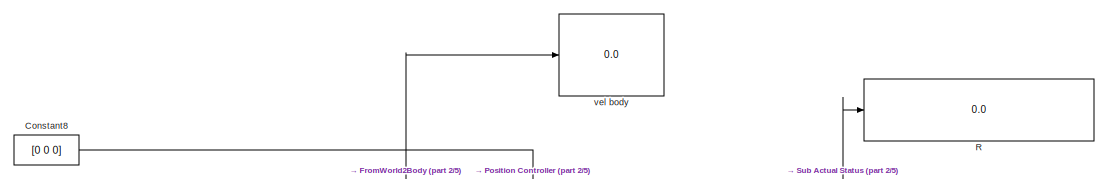
[diagram: root canvas - part 1/5, top center region]
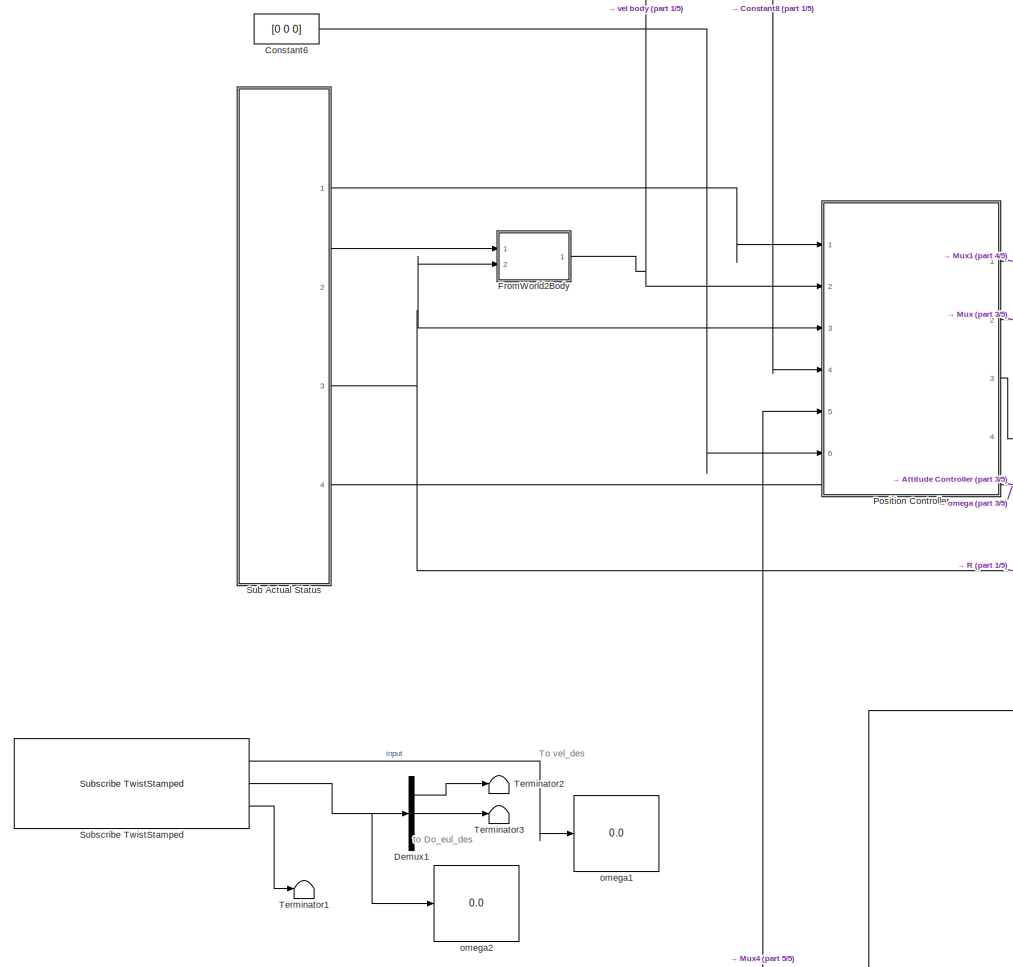
[diagram: root canvas - part 2/5, middle left region]
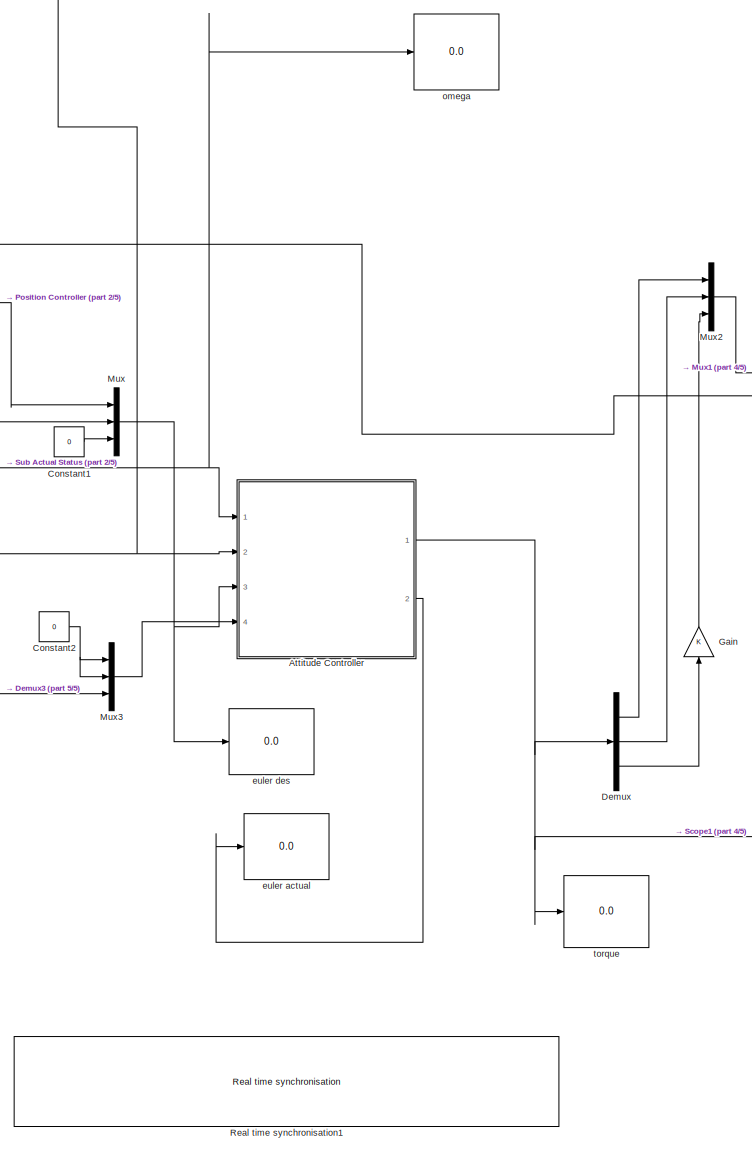
[diagram: root canvas - part 3/5, center side, full height]
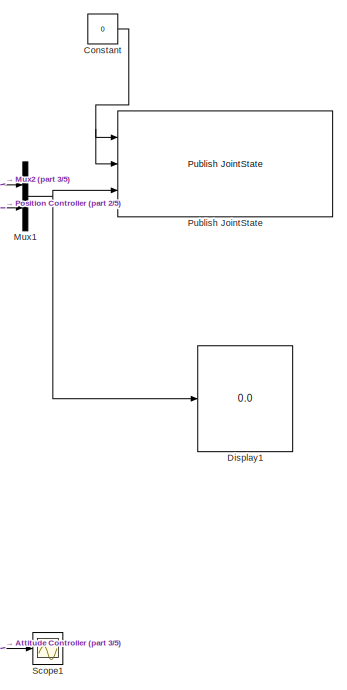
[diagram: root canvas - part 4/5, middle right region]
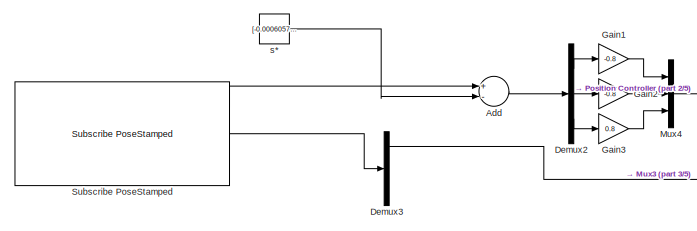
[diagram: root canvas - part 5/5, bottom left region]
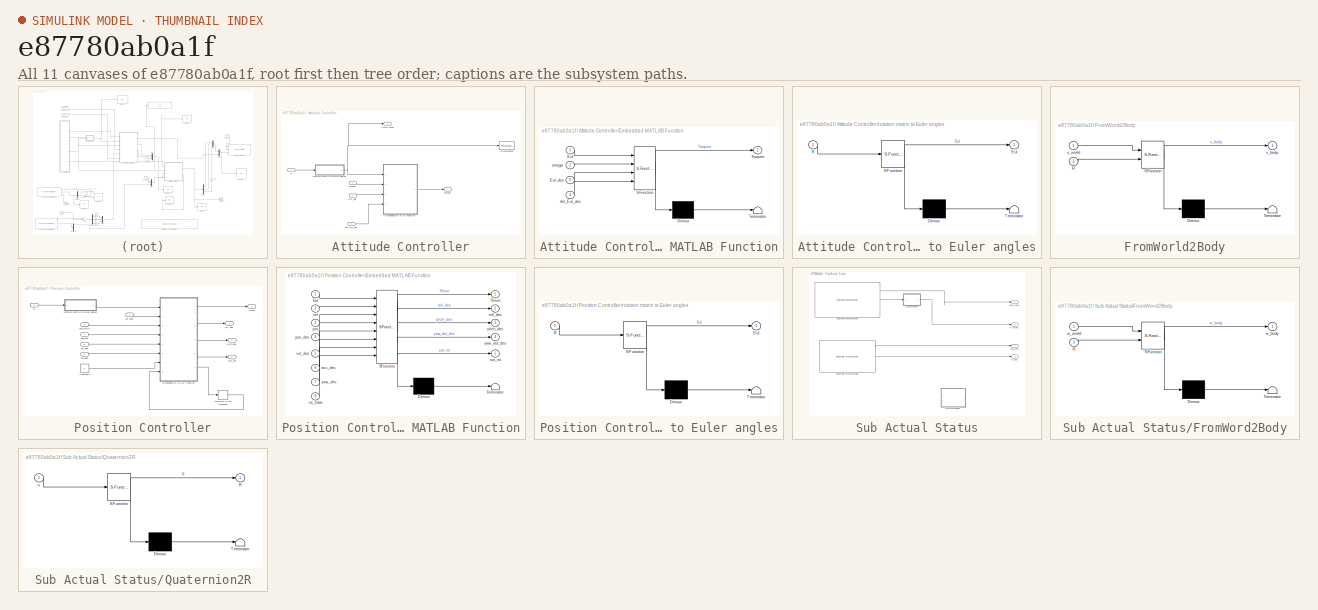
[diagram: thumbnail index - all 11 canvases of the model, root first then tree order]
MODEL slx_e87780ab0a1f
KIND model
BLOCK [Sum] Add
  InputSameDT = off
  Inputs = +-
  OutDataTypeStr = Inherit: Inherit via internal rule
  Ports = [2, 1]
  SaturateOnIntegerOverflow = off
BLOCK [SubSystem] Attitude Controller
  Ports = [4, 2]
  RequestExecContextInheritance = off
  SystemSampleTime = IMU_time_step
BLOCK [Outport] Attitude Controller/Actual euler
  IconDisplay = Port number
  Port = 2
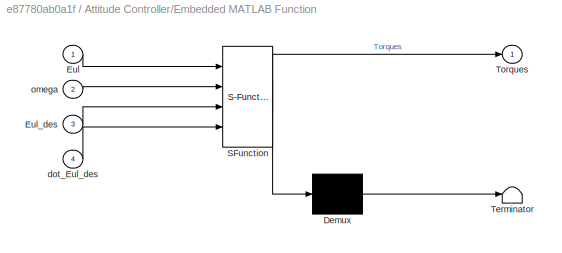
BLOCK [SubSystem] Attitude Controller/Embedded MATLAB Function
  ErrorFcn = Stateflow.Translate.translate
  PermitHierarchicalResolution = ExplicitOnly
  Ports = [4, 1]
  RequestExecContextInheritance = off
  SFBlockType = MATLAB Function
  TreatAsAtomicUnit = on
BLOCK [Demux] Attitude Controller/Embedded MATLAB Function/ Demux 
  Outputs = 1
  Ports = [1, 1]
BLOCK [S-Function] Attitude Controller/Embedded MATLAB Function/ SFunction 
  EnableBusSupport = off
  FunctionName = sf_sfun
  Parameters = KDP,KDR,KDY,KPP,KPR,KPY
  PortCounts = [4 2]
  Ports = [4, 2]
  Tag = Stateflow S-Function test_vel_ctrl 1
BLOCK [Terminator] Attitude Controller/Embedded MATLAB Function/ Terminator 
BLOCK [Inport] Attitude Controller/Embedded MATLAB Function/Eul
  IconDisplay = Port number
BLOCK [Inport] Attitude Controller/Embedded MATLAB Function/Eul_des
  IconDisplay = Port number
  Port = 3
BLOCK [Outport] Attitude Controller/Embedded MATLAB Function/Torques
  IconDisplay = Port number
BLOCK [Inport] Attitude Controller/Embedded MATLAB Function/dot_Eul_des
  IconDisplay = Port number
  Port = 4
BLOCK [Inport] Attitude Controller/Embedded MATLAB Function/omega
  IconDisplay = Port number
  Port = 2
BLOCK [Inport] Attitude Controller/Eul_des
  IconDisplay = Port number
  Port = 3
BLOCK [Inport] Attitude Controller/R
  IconDisplay = Port number
  Port = 2
BLOCK [ToWorkspace] Attitude Controller/To Workspace
  MaxDataPoints = inf
  Ports = [1]
  SampleTime = -1
  VariableName = Eul
BLOCK [Outport] Attitude Controller/Torques
  IconDisplay = Port number
BLOCK [Inport] Attitude Controller/dot_Eul_des
  IconDisplay = Port number
  Port = 4
BLOCK [Inport] Attitude Controller/omega
  IconDisplay = Port number
BLOCK [SubSystem] Attitude Controller/rotation matrix to Euler angles
  ErrorFcn = Stateflow.Translate.translate
  PermitHierarchicalResolution = ExplicitOnly
  Ports = [1, 1]
  RequestExecContextInheritance = off
  SFBlockType = MATLAB Function
  TreatAsAtomicUnit = on
BLOCK [Demux] Attitude Controller/rotation matrix to Euler angles/ Demux 
  Outputs = 1
  Ports = [1, 1]
BLOCK [S-Function] Attitude Controller/rotation matrix to Euler angles/ SFunction 
  EnableBusSupport = off
  FunctionName = sf_sfun
  PortCounts = [1 2]
  Ports = [1, 2]
  Tag = Stateflow S-Function test_vel_ctrl 26
BLOCK [Terminator] Attitude Controller/rotation matrix to Euler angles/ Terminator 
BLOCK [Outport] Attitude Controller/rotation matrix to Euler angles/Eul
  IconDisplay = Port number
BLOCK [Inport] Attitude Controller/rotation matrix to Euler angles/R
  IconDisplay = Port number
BLOCK [Constant] Constant
  Value = 0
BLOCK [Constant] Constant1
  Value = 0
BLOCK [Constant] Constant2
  Value = 0
BLOCK [Constant] Constant6
  Value = [0 0 0]
BLOCK [Constant] Constant8
  Value = [0 0 0]
BLOCK [Demux] Demux
  DisplayOption = bar
  Outputs = 3
  Ports = [1, 3]
BLOCK [Demux] Demux1
  DisplayOption = bar
  Outputs = 3
  Ports = [1, 3]
BLOCK [Demux] Demux2
  DisplayOption = bar
  Outputs = 3
  Ports = [1, 3]
BLOCK [Demux] Demux3
  DisplayOption = bar
  Ports = [1, 4]
BLOCK [Display] Display1
  Decimation = 1
  Ports = [1]
BLOCK [SubSystem] FromWorld2Body
  ErrorFcn = Stateflow.Translate.translate
  PermitHierarchicalResolution = ExplicitOnly
  Ports = [2, 1]
  RequestExecContextInheritance = off
  SFBlockType = MATLAB Function
  TreatAsAtomicUnit = on
BLOCK [Demux] FromWorld2Body/ Demux 
  Outputs = 1
  Ports = [1, 1]
BLOCK [S-Function] FromWorld2Body/ SFunction 
  EnableBusSupport = off
  FunctionName = sf_sfun
  PortCounts = [2 2]
  Ports = [2, 2]
  Tag = Stateflow S-Function test_vel_ctrl 6
BLOCK [Terminator] FromWorld2Body/ Terminator 
BLOCK [Inport] FromWorld2Body/R
  IconDisplay = Port number
  Port = 2
BLOCK [Outport] FromWorld2Body/v_body
  IconDisplay = Port number
BLOCK [Inport] FromWorld2Body/v_world
  IconDisplay = Port number
BLOCK [Gain] Gain
  OutDataTypeStr = Inherit: Inherit via internal rule
  ParamDataTypeStr = Inherit: Inherit via internal rule
  SaturateOnIntegerOverflow = off
BLOCK [Gain] Gain1
  Gain = -0.8
  OutDataTypeStr = Inherit: Inherit via internal rule
  ParamDataTypeStr = Inherit: Inherit via internal rule
  SaturateOnIntegerOverflow = off
BLOCK [Gain] Gain2
  Gain = -0.8
  OutDataTypeStr = Inherit: Inherit via internal rule
  ParamDataTypeStr = Inherit: Inherit via internal rule
  SaturateOnIntegerOverflow = off
BLOCK [Gain] Gain3
  Gain = 0.8
  OutDataTypeStr = Inherit: Inherit via internal rule
  ParamDataTypeStr = Inherit: Inherit via internal rule
  SaturateOnIntegerOverflow = off
BLOCK [Mux] Mux
  DisplayOption = bar
  Inputs = 3
  Ports = [3, 1]
BLOCK [Mux] Mux1
  DisplayOption = bar
  Inputs = 2
  Ports = [2, 1]
BLOCK [Mux] Mux2
  DisplayOption = bar
  Inputs = 3
  Ports = [3, 1]
BLOCK [Mux] Mux3
  DisplayOption = bar
  Inputs = 3
  Ports = [3, 1]
BLOCK [Mux] Mux4
  DisplayOption = bar
  Inputs = 3
  Ports = [3, 1]
BLOCK [SubSystem] Position Controller
  Ports = [6, 4]
  RequestExecContextInheritance = off
  SystemSampleTime = VICON_time_step
BLOCK [Constant] Position Controller/Constant3
  Value = 0
BLOCK [DiscreteIntegrator] Position Controller/Discrete-Time Integrator
  ICPrevOutput = DiscIntNeverNeededParam
  ICPrevScaledInput = DiscIntNeverNeededParam
  InitialCondition = [0 0 0]
  Ports = [1, 1]
  SampleTime = -1
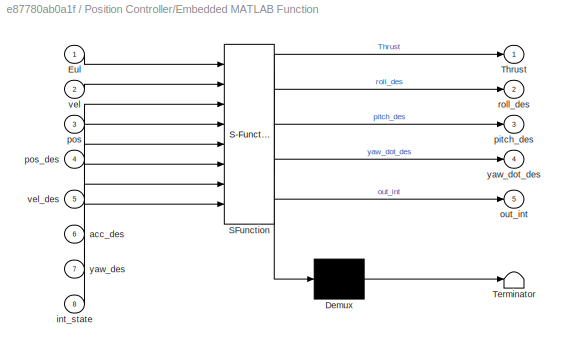
BLOCK [SubSystem] Position Controller/Embedded MATLAB Function
  ErrorFcn = Stateflow.Translate.translate
  PermitHierarchicalResolution = ExplicitOnly
  Ports = [8, 5]
  RequestExecContextInheritance = off
  SFBlockType = MATLAB Function
  TreatAsAtomicUnit = on
BLOCK [Demux] Position Controller/Embedded MATLAB Function/ Demux 
  Outputs = 1
  Ports = [1, 1]
BLOCK [S-Function] Position Controller/Embedded MATLAB Function/ SFunction 
  EnableBusSupport = off
  FunctionName = sf_sfun
  Parameters = g,kd,ki,kp,m0,max_pitch,max_roll
  PortCounts = [8 6]
  Ports = [8, 6]
  Tag = Stateflow S-Function test_vel_ctrl 3
BLOCK [Terminator] Position Controller/Embedded MATLAB Function/ Terminator 
BLOCK [Inport] Position Controller/Embedded MATLAB Function/Eul
  IconDisplay = Port number
BLOCK [Outport] Position Controller/Embedded MATLAB Function/Thrust
  IconDisplay = Port number
BLOCK [Inport] Position Controller/Embedded MATLAB Function/acc_des
  IconDisplay = Port number
  Port = 6
BLOCK [Inport] Position Controller/Embedded MATLAB Function/int_state
  IconDisplay = Port number
  Port = 8
BLOCK [Outport] Position Controller/Embedded MATLAB Function/out_int
  IconDisplay = Port number
  Port = 5
BLOCK [Outport] Position Controller/Embedded MATLAB Function/pitch_des
  IconDisplay = Port number
  Port = 3
BLOCK [Inport] Position Controller/Embedded MATLAB Function/pos
  IconDisplay = Port number
  Port = 3
BLOCK [Inport] Position Controller/Embedded MATLAB Function/pos_des
  IconDisplay = Port number
  Port = 4
BLOCK [Outport] Position Controller/Embedded MATLAB Function/roll_des
  IconDisplay = Port number
  Port = 2
BLOCK [Inport] Position Controller/Embedded MATLAB Function/vel
  IconDisplay = Port number
  Port = 2
BLOCK [Inport] Position Controller/Embedded MATLAB Function/vel_des
  IconDisplay = Port number
  Port = 5
BLOCK [Inport] Position Controller/Embedded MATLAB Function/yaw_des
  IconDisplay = Port number
  Port = 7
BLOCK [Outport] Position Controller/Embedded MATLAB Function/yaw_dot_des
  IconDisplay = Port number
  Port = 4
BLOCK [Inport] Position Controller/R
  IconDisplay = Port number
  Port = 3
BLOCK [Outport] Position Controller/Thrust
  IconDisplay = Port number
BLOCK [Inport] Position Controller/acc_des
  IconDisplay = Port number
  Port = 6
BLOCK [Outport] Position Controller/pitch_des
  IconDisplay = Port number
  Port = 3
BLOCK [Inport] Position Controller/pos_des
  IconDisplay = Port number
  Port = 4
BLOCK [Inport] Position Controller/pos_world
  IconDisplay = Port number
BLOCK [Outport] Position Controller/roll_des
  IconDisplay = Port number
  Port = 2
BLOCK [SubSystem] Position Controller/rotation matrix to Euler angles
  ErrorFcn = Stateflow.Translate.translate
  PermitHierarchicalResolution = ExplicitOnly
  Ports = [1, 1]
  RequestExecContextInheritance = off
  SFBlockType = MATLAB Function
  TreatAsAtomicUnit = on
BLOCK [Demux] Position Controller/rotation matrix to Euler angles/ Demux 
  Outputs = 1
  Ports = [1, 1]
BLOCK [S-Function] Position Controller/rotation matrix to Euler angles/ SFunction 
  EnableBusSupport = off
  FunctionName = sf_sfun
  PortCounts = [1 2]
  Ports = [1, 2]
  Tag = Stateflow S-Function test_vel_ctrl 4
BLOCK [Terminator] Position Controller/rotation matrix to Euler angles/ Terminator 
BLOCK [Outport] Position Controller/rotation matrix to Euler angles/Eul
  IconDisplay = Port number
BLOCK [Inport] Position Controller/rotation matrix to Euler angles/R
  IconDisplay = Port number
BLOCK [Inport] Position Controller/vel_body
  IconDisplay = Port number
  Port = 2
BLOCK [Inport] Position Controller/vel_des
  IconDisplay = Port number
  Port = 5
BLOCK [Outport] Position Controller/yaw_dot
  IconDisplay = Port number
  Port = 4
BLOCK [Reference] Publish JointState  REF=sensor_msgs/Publish JointState
  Ports = [3]
  SourceBlock = sensor_msgs/Publish JointState
  SourceType = Publisher JointState
  list_of_robot_ids = char([0])
  stepTime = basic_time_step
  topic_postfix = ''
  topic_prefix = '/command/quadrotor_'
BLOCK [Display] R
  Decimation = 1
  Ports = [1]
BLOCK [Reference] Real time synchronisation1  REF=rt_sync/Real time synchronisation
  Ports = [0, 1]
  ShowEveryNumCycles = 1/Tsim
  SourceBlock = rt_sync/Real time synchronisation
  minShownDelay = 0.5
  slowDownFactor = 1
  stepTime = Tsim
BLOCK [Scope] Scope1
  DataFormat = StructureWithTime
  Floating = off
  NumInputPorts = 1
  Ports = [1]
  SampleTime = 0
  SaveName = ScopeData1
  ShowLegends = off
BLOCK [SubSystem] Sub Actual Status
  Ports = [0, 4]
  RequestExecContextInheritance = off
BLOCK [SubSystem] Sub Actual Status/FromWord2Body
  Commented = on
  ErrorFcn = Stateflow.Translate.translate
  PermitHierarchicalResolution = ExplicitOnly
  Ports = [2, 1]
  RequestExecContextInheritance = off
  SFBlockType = MATLAB Function
  TreatAsAtomicUnit = on
BLOCK [Demux] Sub Actual Status/FromWord2Body/ Demux 
  Outputs = 1
  Ports = [1, 1]
BLOCK [S-Function] Sub Actual Status/FromWord2Body/ SFunction 
  EnableBusSupport = off
  FunctionName = sf_sfun
  PortCounts = [2 2]
  Ports = [2, 2]
  Tag = Stateflow S-Function test_vel_ctrl 5
BLOCK [Terminator] Sub Actual Status/FromWord2Body/ Terminator 
BLOCK [Inport] Sub Actual Status/FromWord2Body/R
  IconDisplay = Port number
  Port = 2
BLOCK [Outport] Sub Actual Status/FromWord2Body/w_body
  IconDisplay = Port number
BLOCK [Inport] Sub Actual Status/FromWord2Body/w_world
  IconDisplay = Port number
BLOCK [SubSystem] Sub Actual Status/Quaternion2R
  ErrorFcn = Stateflow.Translate.translate
  PermitHierarchicalResolution = ExplicitOnly
  Ports = [1, 1]
  RequestExecContextInheritance = off
  SFBlockType = MATLAB Function
  TreatAsAtomicUnit = on
BLOCK [Demux] Sub Actual Status/Quaternion2R/ Demux 
  Outputs = 1
  Ports = [1, 1]
BLOCK [S-Function] Sub Actual Status/Quaternion2R/ SFunction 
  EnableBusSupport = off
  FunctionName = sf_sfun
  PortCounts = [1 2]
  Ports = [1, 2]
  Tag = Stateflow S-Function test_vel_ctrl 2
BLOCK [Terminator] Sub Actual Status/Quaternion2R/ Terminator 
BLOCK [Outport] Sub Actual Status/Quaternion2R/R
  IconDisplay = Port number
BLOCK [Inport] Sub Actual Status/Quaternion2R/u
  IconDisplay = Port number
BLOCK [Outport] Sub Actual Status/R_world 
  IconDisplay = Port number
  Port = 3
BLOCK [Reference] Sub Actual Status/Subscribe PoseStamped  REF=ros_msgs/geometry_msgs/Subscribe PoseStamped
  Ports = [0, 3]
  SourceBlock = ros_msgs/geometry_msgs/Subscribe PoseStamped
  SourceType = Subscriber PoseStamped
  list_of_robot_ids = char([0])
  stepTime = basic_time_step
  topic_postfix = ''
  topic_prefix = '/vrep/pose/quadrotor_'
BLOCK [Reference] Sub Actual Status/Subscribe TwistStamped  REF=ros_msgs/geometry_msgs/Subscribe TwistStamped
  Ports = [0, 3]
  SourceBlock = ros_msgs/geometry_msgs/Subscribe TwistStamped
  SourceType = Subscriber TwistStamped
  list_of_robot_ids = char([0])
  stepTime = basic_time_step
  topic_postfix = ''
  topic_prefix = '/vrep/twist/quadrotor_'
BLOCK [Outport] Sub Actual Status/pos_world
  IconDisplay = Port number
BLOCK [Outport] Sub Actual Status/vel_world
  IconDisplay = Port number
  Port = 2
BLOCK [Outport] Sub Actual Status/w_body
  IconDisplay = Port number
  Port = 4
BLOCK [Reference] Subscribe PoseStamped  REF=geometry_msgs/Subscribe PoseStamped
  Ports = [0, 3]
  SourceBlock = geometry_msgs/Subscribe PoseStamped
  SourceType = Subscriber PoseStamped
  list_of_robot_ids = char([0])
  stepTime = basic_time_step
  topic_postfix = ''
  topic_prefix = '/vrep/DesFeatures'
BLOCK [Reference] Subscribe TwistStamped  REF=geometry_msgs/Subscribe TwistStamped
  Ports = [0, 3]
  SourceBlock = geometry_msgs/Subscribe TwistStamped
  SourceType = Subscriber TwistStamped
  list_of_robot_ids = char([0])
  stepTime = basic_time_step
  topic_postfix = ''
  topic_prefix = '/vrep/DesiredTwist'
BLOCK [Terminator] Terminator1
BLOCK [Terminator] Terminator2
BLOCK [Terminator] Terminator3
BLOCK [Display] euler actual
  Decimation = 1
  Ports = [1]
BLOCK [Display] euler des
  Decimation = 1
  Ports = [1]
BLOCK [Display] omega
  Decimation = 1
  Ports = [1]
BLOCK [Display] omega1
  Decimation = 1
  Ports = [1]
BLOCK [Display] omega2
  Decimation = 1
  Ports = [1]
BLOCK [Constant] s*
  Value = [-0.000605787 -0.000647209 1]
BLOCK [Display] torque 
  Decimation = 1
  Ports = [1]
BLOCK [Display] vel body
  Decimation = 1
  Ports = [1]
ANNOTATION (root): To vel_des
ANNOTATION (root): to Do_eul_des
LINE Add:1 -> Demux2:1
LINE Attitude Controller/Embedded MATLAB Function:1 -> Attitude Controller/Torques:1
LINE Attitude Controller/Eul_des:1 -> Attitude Controller/Embedded MATLAB Function:3
LINE Attitude Controller/R:1 -> Attitude Controller/rotation matrix to Euler angles:1
LINE Attitude Controller/dot_Eul_des:1 -> Attitude Controller/Embedded MATLAB Function:4
LINE Attitude Controller/omega:1 -> Attitude Controller/Embedded MATLAB Function:2
NET Attitude Controller/rotation matrix to Euler angles:1 -> Attitude Controller/Actual euler:1, Attitude Controller/Embedded MATLAB Function:1, Attitude Controller/To Workspace:1
NET Attitude Controller:1 -> Demux:1, Scope1:1, torque :1
LINE Attitude Controller:2 -> euler actual:1
LINE Constant1:1 -> Mux:3
NET Constant2:1 -> Mux3:1, Mux3:2
LINE Constant6:1 -> Position Controller:6
LINE Constant8:1 -> Position Controller:4
NET Constant:1 -> Publish JointState:1, Publish JointState:2
LINE Demux1:1 -> Terminator2:1
LINE Demux1:2 -> Terminator3:1
LINE Demux2:1 -> Gain1:1
LINE Demux2:2 -> Gain2:1
LINE Demux2:3 -> Gain3:1
LINE Demux3:1 -> Mux3:3
LINE Demux:1 -> Mux2:1
LINE Demux:2 -> Mux2:2
LINE Demux:3 -> Gain:1
NET FromWorld2Body:1 -> Position Controller:2, vel body:1
LINE Gain1:1 -> Mux4:1
LINE Gain2:1 -> Mux4:2
LINE Gain3:1 -> Mux4:3
LINE Gain:1 -> Mux2:3
NET Mux1:1 -> Display1:1, Publish JointState:3
LINE Mux2:1 -> Mux1:1
LINE Mux3:1 -> Attitude Controller:4
LINE Mux4:1 -> Position Controller:5
NET Mux:1 -> Attitude Controller:3, euler des:1
LINE Position Controller/Constant3:1 -> Position Controller/Embedded MATLAB Function:7
LINE Position Controller/Discrete-Time Integrator:1 -> Position Controller/Embedded MATLAB Function:8
LINE Position Controller/Embedded MATLAB Function:1 -> Position Controller/Thrust:1
LINE Position Controller/Embedded MATLAB Function:2 -> Position Controller/roll_des:1
LINE Position Controller/Embedded MATLAB Function:3 -> Position Controller/pitch_des:1
LINE Position Controller/Embedded MATLAB Function:4 -> Position Controller/yaw_dot:1
LINE Position Controller/Embedded MATLAB Function:5 -> Position Controller/Discrete-Time Integrator:1
LINE Position Controller/R:1 -> Position Controller/rotation matrix to Euler angles:1
LINE Position Controller/acc_des:1 -> Position Controller/Embedded MATLAB Function:6
LINE Position Controller/pos_des:1 -> Position Controller/Embedded MATLAB Function:4
LINE Position Controller/pos_world:1 -> Position Controller/Embedded MATLAB Function:3
LINE Position Controller/rotation matrix to Euler angles:1 -> Position Controller/Embedded MATLAB Function:1
LINE Position Controller/vel_body:1 -> Position Controller/Embedded MATLAB Function:2
LINE Position Controller/vel_des:1 -> Position Controller/Embedded MATLAB Function:5
LINE Position Controller:1 -> Mux1:2
LINE Position Controller:2 -> Mux:1
LINE Position Controller:3 -> Mux:2
LINE Sub Actual Status/Quaternion2R:1 -> Sub Actual Status/R_world :1
LINE Sub Actual Status/Subscribe PoseStamped:1 -> Sub Actual Status/pos_world:1
LINE Sub Actual Status/Subscribe PoseStamped:2 -> Sub Actual Status/Quaternion2R:1
LINE Sub Actual Status/Subscribe TwistStamped:1 -> Sub Actual Status/vel_world:1
LINE Sub Actual Status/Subscribe TwistStamped:2 -> Sub Actual Status/w_body:1
LINE Sub Actual Status:1 -> Position Controller:1
LINE Sub Actual Status:2 -> FromWorld2Body:1
NET Sub Actual Status:3 -> Attitude Controller:2, FromWorld2Body:2, Position Controller:3, R:1
NET Sub Actual Status:4 -> Attitude Controller:1, omega:1
LINE Subscribe PoseStamped:1 -> Add:1
LINE Subscribe PoseStamped:2 -> Demux3:1
LINE Subscribe TwistStamped:1 -> omega1:1
NET Subscribe TwistStamped:2 -> Demux1:1, omega2:1
LINE Subscribe TwistStamped:3 -> Terminator1:1
LINE s*:1 -> Add:2
note: NET lines group one-source signal fan-out (src -> all destinations, sorted); 1:1 wires keep LINE
